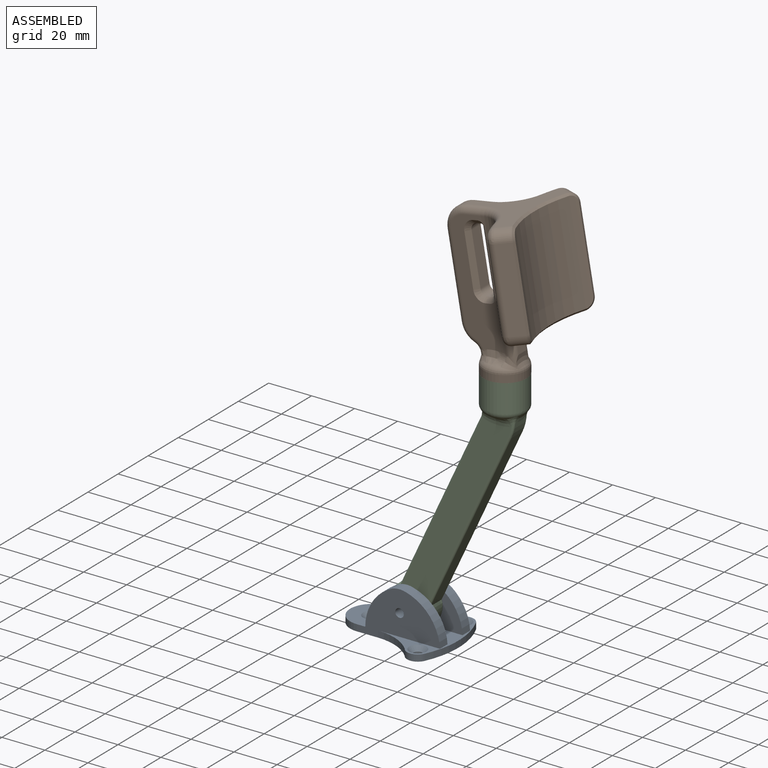
[diagram: assembled view]
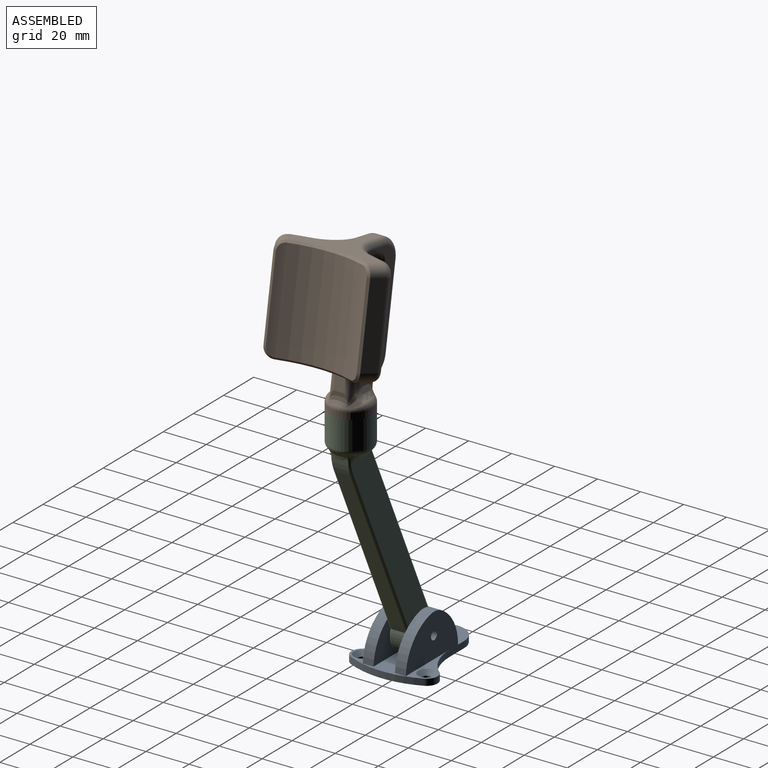
[diagram: assembled view, second angle]
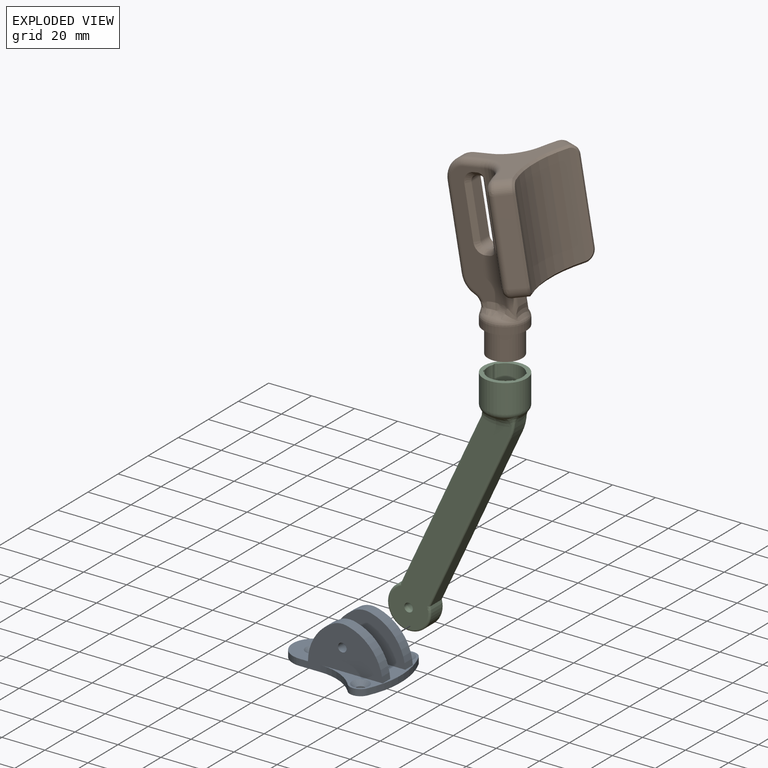
[diagram: exploded view]
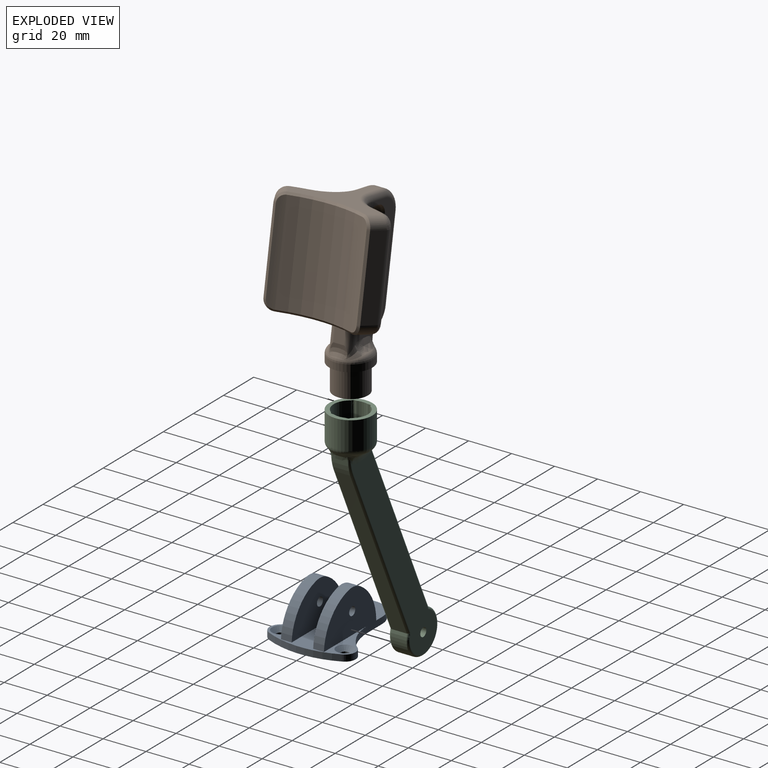
[diagram: exploded view, second angle]
ASSEMBLY  parts=3 mates=3
PART A: 28 faces, bbox 50.3x40x23 mm
  f0: plane 50.33x40mm, normal (0,0,1), area 722.8mm2, adj f1,f2,f3,f4,f5,f6,f7,f10
  f1: cylinder r=5mm len=8.85mm, axis (0,0,-1), area 32.9mm2, adj f0,f2,f10,f12
  f2: cylinder r=40.33mm len=33.66mm, axis (0,0,-1), area 104.2mm2, adj f0,f1,f3,f12
  f3: cylinder r=5mm len=8.93mm, axis (0,0,-1), area 33.4mm2, adj f0,f2,f4,f12
  f4: cylinder r=24.49mm len=17.72mm, axis (0,0,-1), area 59.4mm2, adj f0,f3,f5,f12
  f5: plane 38.82x23mm, normal (0,1,0), area 544.1mm2, adj f0,f4,f6,f12,f22,f23,f24,f25
  f6: cylinder r=10mm len=20mm, axis (0,0,-1), area 94.2mm2, adj f0,f5,f7,f12
  f7: plane 38.82x23mm, normal (0,-1,0), area 544mm2, adj f0,f6,f10,f12,f16,f17,f18,f19
  f8: cylinder r=2mm len=4mm, axis (0,0,-1), area 12.6mm2, adj f12,f15
  f9: cylinder r=2mm len=4mm, axis (0,0,-1), area 12.6mm2, adj f12,f13
  f10: cylinder r=24.4mm len=17.8mm, axis (0,0,-1), area 59.8mm2, adj f0,f1,f7,f12
  f11: cylinder r=2mm len=4mm, axis (0,0,-1), area 12.6mm2, adj f12,f14
  f12: plane 50.33x40mm, normal (0,0,-1), area 1183.7mm2, adj f1,f2,f3,f4,f5,f6,f7,f8
  f13: cone r=2mm half-angle=45deg, axis (0,0,1), area 53.3mm2, adj f0,f9
  f14: cone r=2mm half-angle=45deg, axis (0,0,1), area 53.3mm2, adj f0,f11
  f15: cone r=2mm half-angle=45deg, axis (0,0,1), area 53.3mm2, adj f0,f8
  f16: plane 5x0.01mm, normal (-1,0,0), area 0.1mm2, adj f0,f7,f19,f21
  f17: cylinder r=21.48mm len=19.59mm, axis (0,1,0), area 135.2mm2, adj f0,f7,f18,f21
  f18: cylinder r=10mm len=6.32mm, axis (0,1,0), area 32.2mm2, adj f7,f17,f19,f21
  f19: cylinder r=21.26mm len=19.36mm, axis (0,1,0), area 121.6mm2, adj f7,f16,f18,f21
  f20: cylinder r=2mm len=5mm, axis (0,1,0), area 62.8mm2, adj f7,f21
  f21: plane 34.78x20mm, normal (0,1,0), area 514mm2, adj f0,f16,f17,f18,f19,f20
  f22: cylinder r=10mm len=8.61mm, axis (0,-1,0), area 45.2mm2, adj f5,f23,f25,f27
  f23: cylinder r=21.26mm len=18.14mm, axis (0,-1,0), area 108.7mm2, adj f5,f22,f24,f27
  f24: plane 5x0.01mm, normal (-1,0,0), area 0.1mm2, adj f0,f5,f23,f27
  f25: cylinder r=21.48mm len=19.59mm, axis (0,-1,0), area 135.2mm2, adj f0,f5,f22,f27
  f26: cylinder r=2mm len=5mm, axis (0,-1,0), area 62.8mm2, adj f5,f27
  f27: plane 34.78x20mm, normal (0,-1,0), area 514.1mm2, adj f0,f22,f23,f24,f25,f26
PART B: 108 faces, bbox 53.8x56.3x86.3 mm
  f0: plane 8.94x3.73mm, normal (1,0,0), area 13.1mm2, adj f3,f50,f65,f76
  f1: plane 55.84x23.44mm, normal (0,-1,0), area 505.1mm2, adj f30,f51,f52,f53,f54,f55,f56,f70
  f2: plane 55.84x23.43mm, normal (0,1,0), area 505.1mm2, adj f31,f36,f37,f38,f39,f40,f41,f77
  f3: plane 6.89x4.61mm, normal (0.98,0,0.17), area 32.3mm2, adj f0,f24,f50,f65
  f4: plane 43.1x32.71mm, normal (-0.17,0,0.98), area 450.5mm2, adj f5,f32,f33,f41,f42,f43,f56,f57
  f5: cylinder r=10mm len=11.58mm, axis (0,1,0), area 62.8mm2, adj f4,f6,f40,f55
  f6: plane 37.28x6.57mm, normal (-0.98,0,-0.17), area 151.4mm2, adj f5,f7,f39,f54
  f7: cylinder r=10mm len=7.39mm, axis (0,1,0), area 38.8mm2, adj f6,f38,f53,f69
  f8: cylinder r=3mm len=6mm, axis (0,1,0), area 28.3mm2, adj f9,f15,f87,f97
  f9: plane 23.64x6mm, normal (0.98,0,0.17), area 144mm2, adj f8,f10,f89,f99
  f10: cylinder r=3mm len=6mm, axis (0,1,0), area 28.3mm2, adj f9,f11,f88,f98
  f11: plane 6x1.97mm, normal (0.17,0,-0.98), area 12mm2, adj f10,f12,f86,f96
  f12: cylinder r=1mm len=6.09mm, axis (0,1,0), area 9.5mm2, adj f11,f13,f82,f84,f92,f94
  f13: plane 27.57x6.09mm, normal (-0.98,0,-0.17), area 170.5mm2, adj f12,f14,f80,f90
  f14: cylinder r=1mm len=6.09mm, axis (0,1,0), area 9.5mm2, adj f13,f15,f81,f83,f91,f93
  f15: plane 6x1.97mm, normal (-0.17,0,0.98), area 12mm2, adj f8,f14,f85,f95
  f16: cylinder r=10mm len=20mm, axis (0,0,-1), area 207.3mm2, adj f17,f20
  f17: plane 20x20mm, normal (0,0,-1), area 113.1mm2, adj f16,f18
  f18: cylinder r=8mm len=16mm, axis (0,0,1), area 613.2mm2, adj f17,f19
  f19: plane 16x16mm, normal (0,0,-1), area 194mm2, adj f18,f21
  f20: torus R=7mm, axis (0,0,-1), area 142.7mm2, adj f16,f66,f67,f68,f69,f70,f71,f72
  f21: cylinder r=1.5mm len=5mm, axis (0,0,-1), area 47.1mm2, adj f19,f22
  f22: plane 3x3mm, normal (0,0,-1), area 7.1mm2, adj f21
  f23: plane 43.1x13.69mm, normal (0.17,0,-0.98), area 343.6mm2, adj f24,f34,f35,f47,f48,f62,f63,f107
  f24: cylinder r=5mm len=12.42mm, axis (0,1,0), area 66.9mm2, adj f3,f23,f49,f64
  f25: cylinder r=55mm len=42.01mm, axis (-0.17,0,0.98), area 427.5mm2, adj f31,f43,f44,f45,f46,f47
  f26: cylinder r=55mm len=42.01mm, axis (-0.17,0,0.98), area 427.5mm2, adj f30,f58,f59,f60,f61,f62
  f27: plane 38.46x12.5mm, normal (0.49,-0.87,0.09), area 263.1mm2, adj f32,f34,f60,f104
  f28: cylinder r=44mm len=46.24mm, axis (-0.17,0,0.98), area 1998.2mm2, adj f100,f101,f102,f103,f104,f105,f106,f107
  f29: plane 38.46x12.5mm, normal (0.49,0.87,0.09), area 263.1mm2, adj f33,f35,f45,f103
  f30: cylinder r=14mm len=57.7mm, axis (-0.17,0,0.98), area 776.5mm2, adj f1,f26,f57,f63,f64,f65,f72,f90
  f31: cylinder r=14mm len=57.7mm, axis (-0.17,0,0.98), area 776.5mm2, adj f2,f25,f42,f48,f49,f50,f79,f80
  f32: cylinder r=5mm len=9.46mm, axis (-0.85,-0.5,-0.15), area 54.8mm2, adj f4,f27,f59,f102
  f33: cylinder r=5mm len=9.46mm, axis (0.85,-0.5,0.15), area 54.8mm2, adj f4,f29,f44,f101
  f34: cylinder r=5mm len=7.93mm, axis (-0.85,-0.5,-0.15), area 54.8mm2, adj f23,f27,f61,f106
  f35: cylinder r=5mm len=7.93mm, axis (0.85,-0.5,0.15), area 54.8mm2, adj f23,f29,f46,f105
  f36: torus R=8mm, axis (0,-1,0), area 12.3mm2, adj f2,f37,f75
  f37: cylinder r=3mm len=2.85mm, axis (0.92,0,-0.38), area 1.6mm2, adj f2,f36,f38,f73
  f38: torus R=7mm, axis (0,-1,0), area 42mm2, adj f2,f7,f37,f39,f71
  f39: cylinder r=3mm len=37.8mm, axis (0.17,0,-0.98), area 178.4mm2, adj f2,f6,f38,f40
  f40: torus R=7mm, axis (0,-1,0), area 66mm2, adj f2,f5,f39,f41
  f41: cylinder r=3mm len=8.51mm, axis (-0.98,0,-0.17), area 38.2mm2, adj f2,f4,f40,f42
  f42: torus R=17mm, axis (0.17,0,-0.98), area 91.9mm2, adj f4,f31,f41,f43
  f43: torus R=52mm, axis (0.17,0,-0.98), area 37.7mm2, adj f4,f25,f42,f44
  f44: bspline ~6.25x6.16mm, area 30.2mm2, adj f25,f33,f43,f45
  f45: cylinder r=3mm len=38.15mm, axis (-0.17,0,0.98), area 185.7mm2, adj f25,f29,f44,f46
  f46: bspline ~6.99x6.9mm, area 30.2mm2, adj f25,f35,f45,f47
  f47: torus R=52mm, axis (-0.17,0,0.98), area 37.7mm2, adj f23,f25,f46,f48
  f48: torus R=17mm, axis (-0.17,0,0.98), area 40.7mm2, adj f23,f31,f47,f49
  f49: bspline ~10.81x8.91mm, area 50.3mm2, adj f24,f31,f48,f50
  f50: cylinder r=3mm len=11.34mm, axis (-0.17,0,0.98), area 44.9mm2, adj f0,f3,f31,f49,f76,f78
  f51: torus R=8mm, axis (0,-1,0), area 12.3mm2, adj f1,f52,f68
  f52: cylinder r=3mm len=2.85mm, axis (-0.92,0,0.38), area 1.6mm2, adj f1,f51,f53,f66
  f53: torus R=7mm, axis (0,-1,0), area 42mm2, adj f1,f7,f52,f54,f67
  f54: cylinder r=3mm len=37.8mm, axis (-0.17,0,0.98), area 178.4mm2, adj f1,f6,f53,f55
  f55: torus R=7mm, axis (0,-1,0), area 66mm2, adj f1,f5,f54,f56
  f56: cylinder r=3mm len=8.51mm, axis (0.98,0,0.17), area 38.2mm2, adj f1,f4,f55,f57
  f57: torus R=17mm, axis (0.17,0,-0.98), area 91.9mm2, adj f4,f30,f56,f58
  f58: torus R=52mm, axis (0.17,0,-0.98), area 37.7mm2, adj f4,f26,f57,f59
  f59: bspline ~6.99x6.45mm, area 30.2mm2, adj f26,f32,f58,f60
  f60: cylinder r=3mm len=38.15mm, axis (-0.17,0,0.98), area 185.7mm2, adj f26,f27,f59,f61
  f61: bspline ~6.9x6.25mm, area 30.2mm2, adj f26,f34,f60,f62
  f62: torus R=52mm, axis (-0.17,0,0.98), area 37.7mm2, adj f23,f26,f61,f63
  f63: torus R=17mm, axis (-0.17,0,0.98), area 40.7mm2, adj f23,f30,f62,f64
  f64: bspline ~10.81x8.91mm, area 50.3mm2, adj f24,f30,f63,f65
  f65: cylinder r=3mm len=11.34mm, axis (-0.17,0,0.98), area 44.9mm2, adj f0,f3,f30,f64,f74,f76
  f66: bspline ~6.39x4.57mm, area 4.9mm2, adj f20,f52,f67,f68
  f67: bspline ~6.38x4.39mm, area 6.7mm2, adj f20,f53,f66,f69
  f68: bspline ~7.6x6.39mm, area 24.3mm2, adj f20,f51,f66,f70
  f69: bspline ~7.84x6.48mm, area 24.3mm2, adj f7,f20,f67,f71
  f70: bspline ~9.9x5.24mm, area 40.4mm2, adj f1,f20,f68,f72
  f71: bspline ~6.4x4.47mm, area 6.7mm2, adj f20,f38,f69,f73
  f72: bspline ~6.21x4.9mm, area 12.1mm2, adj f20,f30,f70,f74
  f73: bspline ~6.39x4.74mm, area 4.9mm2, adj f20,f37,f71,f75
  f74: bspline ~7.12x6.24mm, area 22.5mm2, adj f20,f65,f72,f76
  f75: bspline ~7.33x6.3mm, area 24.3mm2, adj f20,f36,f73,f77
  f76: bspline ~11.86x4.07mm, area 27.9mm2, adj f0,f20,f50,f65,f74,f78
  f77: bspline ~10.57x5.2mm, area 40.4mm2, adj f2,f20,f75,f79
  f78: bspline ~7.12x6.24mm, area 22.5mm2, adj f20,f50,f76,f79
  f79: bspline ~6.21x4.9mm, area 12.1mm2, adj f20,f31,f77,f78
  f80: plane 27.9x6.68mm, normal (-0.72,0.68,-0.13), area 76.2mm2, adj f13,f31,f81,f82
  f81: bspline ~2.55x2.24mm, area 5mm2, adj f14,f31,f80,f83
  f82: bspline ~2.5x2.35mm, area 5mm2, adj f12,f31,f80,f84
  f83: cone r=3mm half-angle=45deg, axis (0,1,0), area 3.6mm2, adj f2,f14,f81,f85
  f84: cone r=3mm half-angle=45deg, axis (0,1,0), area 3.6mm2, adj f2,f12,f82,f86
  f85: plane 2.32x2.32mm, normal (-0.12,0.71,0.7), area 5.7mm2, adj f2,f15,f83,f87
  f86: plane 2.32x2.32mm, normal (0.12,0.71,-0.7), area 5.7mm2, adj f2,f11,f84,f88
  f87: cone r=5mm half-angle=45deg, axis (0,1,0), area 17.8mm2, adj f2,f8,f85,f89
  f88: cone r=5mm half-angle=45deg, axis (0,1,0), area 17.8mm2, adj f2,f10,f86,f89
  f89: plane 23.98x6.14mm, normal (0.7,0.71,0.12), area 67.9mm2, adj f2,f9,f87,f88
  f90: plane 27.9x6.68mm, normal (-0.72,-0.68,-0.13), area 76.2mm2, adj f13,f30,f91,f92
  f91: bspline ~2.55x2.24mm, area 5mm2, adj f14,f30,f90,f93
  f92: bspline ~2.5x2.35mm, area 5mm2, adj f12,f30,f90,f94
  f93: cone r=1mm half-angle=45deg, axis (0,-1,0), area 3.6mm2, adj f1,f14,f91,f95
  f94: cone r=1mm half-angle=45deg, axis (0,-1,0), area 3.6mm2, adj f1,f12,f92,f96
  f95: plane 2.32x2.32mm, normal (-0.12,-0.71,0.7), area 5.7mm2, adj f1,f15,f93,f97
  f96: plane 2.32x2.32mm, normal (0.12,-0.71,-0.7), area 5.7mm2, adj f1,f11,f94,f98
  f97: cone r=3mm half-angle=45deg, axis (0,-1,0), area 17.8mm2, adj f1,f8,f95,f99
  f98: cone r=3mm half-angle=45deg, axis (0,-1,0), area 17.8mm2, adj f1,f10,f96,f99
  f99: plane 23.98x6.14mm, normal (0.7,-0.71,0.12), area 67.9mm2, adj f1,f9,f97,f98
  f100: cone r=44mm half-angle=45deg, axis (-0.17,0,0.98), area 51.9mm2, adj f4,f28,f101,f102
  f101: bspline ~4.87x4.63mm, area 9.8mm2, adj f28,f33,f100,f103
  f102: bspline ~4.87x4.63mm, area 9.8mm2, adj f28,f32,f100,f104
  f103: plane 37.49x6.97mm, normal (0.95,0.27,0.17), area 53.1mm2, adj f28,f29,f101,f105
  f104: plane 37.49x6.97mm, normal (0.95,-0.27,0.17), area 53.1mm2, adj f27,f28,f102,f106
  f105: bspline ~5.38x4.87mm, area 9.8mm2, adj f28,f35,f103,f107
  f106: bspline ~5.38x4.87mm, area 9.8mm2, adj f28,f34,f104,f107
  f107: cone r=45mm half-angle=45deg, axis (0.17,0,-0.98), area 51.9mm2, adj f23,f28,f105,f106
PART C: 51 faces, bbox 21.7x63.4x119.3 mm
  f0: plane 0.33x0.1mm, normal (0,1,-0.09), area 0mm2, adj f3,f18,f45
  f1: cylinder r=10mm len=20mm, axis (-1,0,0), area 321.1mm2, adj f2,f5,f19,f20
  f2: plane 80.77x37.66mm, normal (0,0.91,-0.42), area 623.8mm2, adj f1,f3,f15,f16
  f3: cylinder r=20mm len=7mm, axis (-1,0,0), area 47.4mm2, adj f0,f2,f4,f14,f17,f43
  f4: plane 0.33x0.1mm, normal (0,1,-0.09), area 0mm2, adj f3,f13,f41
  f5: plane 79.67x37.15mm, normal (0,-0.91,0.42), area 613.4mm2, adj f1,f9,f11,f44
  f6: cylinder r=2mm len=9mm, axis (-1,0,0), area 113.1mm2, adj f7,f8
  f7: plane 98.24x56.84mm, normal (1,0,0), area 1400.9mm2, adj f6,f11,f12,f14,f15,f20,f37
  f8: plane 98.24x56.84mm, normal (-1,0,0), area 1400.9mm2, adj f6,f9,f10,f16,f17,f19,f50
  f9: cylinder r=1mm len=80.75mm, axis (0,-0.42,-0.91), area 138.9mm2, adj f5,f8,f10,f19,f46
  f10: torus R=11mm, axis (1,0,0), area 0.8mm2, adj f8,f9,f48
  f11: cylinder r=1mm len=80.75mm, axis (0,0.42,0.91), area 138.9mm2, adj f5,f7,f12,f20,f42
  f12: torus R=11mm, axis (1,0,0), area 0.8mm2, adj f7,f11,f40
  f13: cylinder r=1mm len=0.81mm, axis (0,-0.09,-1), area 0.4mm2, adj f4,f14,f39
  f14: torus R=19mm, axis (1,0,0), area 10.2mm2, adj f3,f7,f13,f15,f38
  f15: cylinder r=1mm len=81.54mm, axis (0,-0.42,-0.91), area 140.3mm2, adj f2,f7,f14,f20
  f16: cylinder r=1mm len=81.54mm, axis (0,0.42,0.91), area 140.3mm2, adj f2,f8,f17,f19
  f17: torus R=19mm, axis (1,0,0), area 10.2mm2, adj f3,f8,f16,f18,f49
  f18: cylinder r=1mm len=0.81mm, axis (0,0.09,1), area 0.4mm2, adj f0,f17,f47
  f19: torus R=9mm, axis (1,0,0), area 70mm2, adj f1,f8,f9,f16
  f20: torus R=9mm, axis (1,0,0), area 70mm2, adj f1,f7,f11,f15
  f21: cylinder r=10mm len=20mm, axis (0,0,-1), area 816.8mm2, adj f34,f36
  f22: cylinder r=8mm len=13.24mm, axis (0,0,-1), area 202.6mm2, adj f23,f33,f34,f35
  f23: extruded ~13x1mm, area 19.6mm2, adj f22,f24,f34,f35
  f24: plane 13x0.88mm, normal (0,1,0), area 11.4mm2, adj f23,f25,f34,f35
  f25: cylinder r=8mm len=13mm, axis (0,0,-1), area 69.5mm2, adj f24,f26,f34,f35
  f26: plane 13x0.88mm, normal (0,1,0), area 11.4mm2, adj f25,f27,f34,f35
  f27: extruded ~13x1mm, area 19.7mm2, adj f26,f28,f34,f35
  f28: cylinder r=8mm len=13.24mm, axis (0,0,-1), area 202.6mm2, adj f27,f29,f34,f35
  f29: extruded ~13x0.99mm, area 18.9mm2, adj f28,f30,f34,f35
  f30: plane 13x0.72mm, normal (0,-1,0), area 9.3mm2, adj f29,f31,f34,f35
  f31: cylinder r=8mm len=13mm, axis (0,0,-1), area 73.9mm2, adj f30,f32,f34,f35
  f32: plane 13x0.72mm, normal (0,-1,0), area 9.3mm2, adj f31,f33,f34,f35
  f33: extruded ~13x0.99mm, area 18.9mm2, adj f22,f32,f34,f35
  f34: plane 20x20mm, normal (0,0,1), area 111mm2, adj f21,f22,f23,f24,f25,f26,f27,f28
  f35: plane 16x16mm, normal (0,0,1), area 203.1mm2, adj f22,f23,f24,f25,f26,f27,f28,f29
  f36: torus R=7mm, axis (0,0,1), area 160.3mm2, adj f21,f37,f38,f39,f40,f41,f42,f43
  f37: bspline ~15.47x5.47mm, area 69.2mm2, adj f7,f36,f38,f40
  f38: bspline ~5.59x3.96mm, area 8.2mm2, adj f14,f36,f37,f39
  f39: bspline ~4.07x3.47mm, area 7.9mm2, adj f13,f36,f38,f41
  f40: bspline ~5.28x4.63mm, area 13.8mm2, adj f12,f36,f37,f42
  f41: bspline ~3.51x3.17mm, area 1mm2, adj f4,f36,f39,f43
  f42: bspline ~5.38x2.29mm, area 2.9mm2, adj f11,f36,f40,f44
  f43: bspline ~9.94x3.67mm, area 20.2mm2, adj f3,f36,f41,f45
  f44: bspline ~8.86x5.44mm, area 31.9mm2, adj f5,f36,f42,f46
  f45: bspline ~3.37x2.24mm, area 1mm2, adj f0,f36,f43,f47
  f46: bspline ~5.39x2.75mm, area 2.9mm2, adj f9,f36,f44,f48
  f47: bspline ~4.07x3.47mm, area 7.9mm2, adj f18,f36,f45,f49
  f48: bspline ~5.28x4.63mm, area 13.8mm2, adj f10,f36,f46,f50
  f49: bspline ~5.59x3.96mm, area 8.2mm2, adj f17,f36,f47,f50
  f50: bspline ~16.41x5.62mm, area 69.2mm2, adj f8,f36,f48,f49
PLACE A at identity
PLACE B t=(51.74,5.5,148.85)mm
PLACE C rot(axis=(0,0,-1),90deg) t=(20,5,13)mm
MATE cylindrical B.f16 <-> C.f21  axis (0,0,-1) through (61.74,0.5,121.49)mm
MATE cylindrical B.f16 <-> C.f21  axis (0,0,-1) through (61.74,0.5,109.29)mm
MATE cylindrical C.f6 <-> A.f18  axis (0,1,0) through (20,5,13)mm
